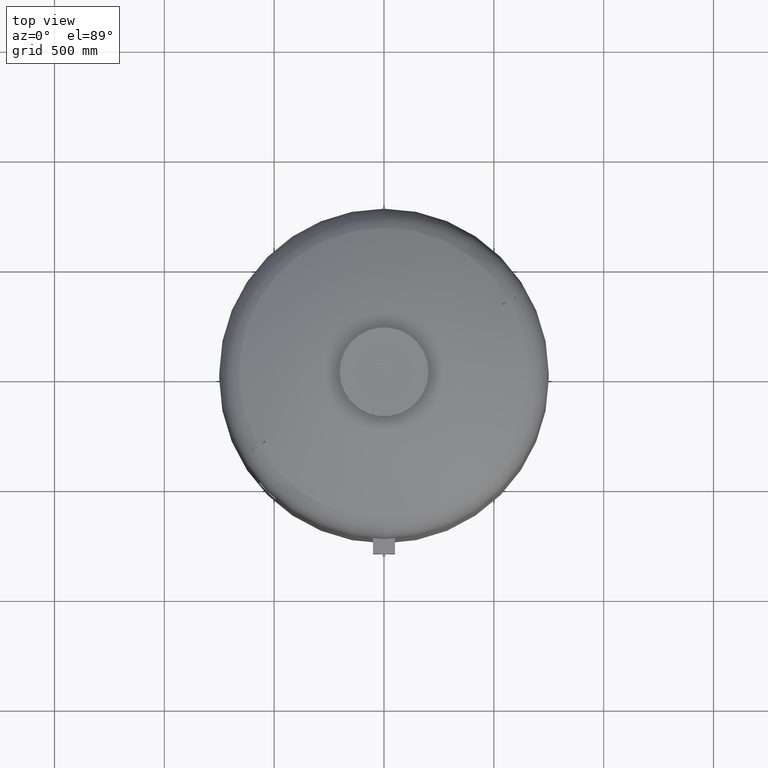
[diagram: clean part render]
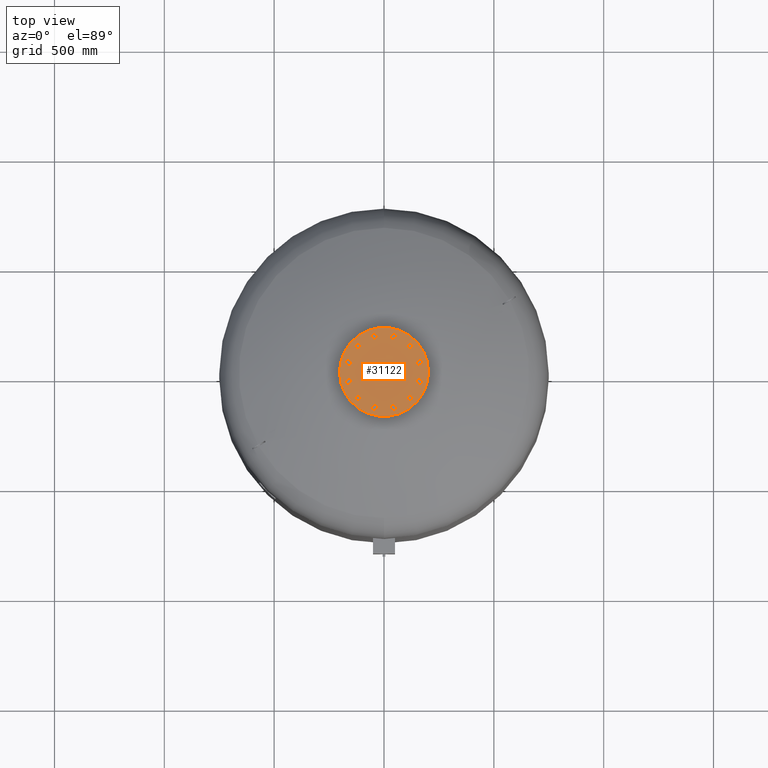
[diagram: same view with one face highlighted and labeled with its STEP entity id]
A machine part, top view. The second image highlights one B-rep face of the part: STEP entity #31122.
In plain terms, the highlighted planar face has unit normal (0, 0, 1).
Its self-contained STEP definition (entity closure, byte-faithful):
#22638=CARTESIAN_POINT('',(202.500000000000000,0.0,2520.0));
#22639=VERTEX_POINT('',#22638);
#22655=CARTESIAN_POINT('',(-202.500000000000000,2.479828E-014,2520.0));
#22656=VERTEX_POINT('',#22655);
#22663=CARTESIAN_POINT('',(0.0,0.0,2520.0));
#22664=DIRECTION('',(0.0,0.0,-1.0));
#22665=DIRECTION('',(1.0,0.0,0.0));
#22666=AXIS2_PLACEMENT_3D('',#22663,#22664,#22665);
#22667=CIRCLE('',#22666,202.500000000000000);
#22668=EDGE_CURVE('',#22656,#22639,#22667,.T.);
#28616=CARTESIAN_POINT('',(-157.729139400922860,-30.104983413641008,2520.0));
#28617=VERTEX_POINT('',#28616);
#28618=CARTESIAN_POINT('',(-148.288440171855850,-40.247625971983268,2520.0));
#28619=VERTEX_POINT('',#28618);
#28620=CARTESIAN_POINT('',(-157.729139400922860,-30.104983413641008,2520.0));
#28621=DIRECTION('',(0.681323780155013,-0.731982176419128,0.0));
#28622=VECTOR('',#28621,13.856406460551090);
#28623=LINE('',#28620,#28622);
#28624=EDGE_CURVE('',#28617,#28619,#28623,.T.);
#28656=CARTESIAN_POINT('',(-171.233275132485970,-33.209547496330110,2520.0));
#28657=VERTEX_POINT('',#28656);
#28658=CARTESIAN_POINT('',(-171.233275132485970,-33.209547496330110,2520.0));
#28659=DIRECTION('',(0.974577049973894,0.224052613607123,0.0));
#28660=VECTOR('',#28659,13.856406460551119);
#28661=LINE('',#28658,#28660);
#28662=EDGE_CURVE('',#28657,#28617,#28661,.T.);
#28687=CARTESIAN_POINT('',(-175.296711634982050,-46.456754137361422,2520.0));
#28688=VERTEX_POINT('',#28687);
#28689=CARTESIAN_POINT('',(-175.296711634982050,-46.456754137361422,2520.0));
#28690=DIRECTION('',(0.293253269818881,0.956034790026249,0.0));
#28691=VECTOR('',#28690,13.856406460551076);
#28692=LINE('',#28689,#28691);
#28693=EDGE_CURVE('',#28688,#28657,#28692,.T.);
#28718=CARTESIAN_POINT('',(-152.351876674351930,-53.494832613014587,2520.0));
#28719=VERTEX_POINT('',#28718);
#28720=CARTESIAN_POINT('',(-148.288440171855850,-40.247625971983268,2520.0));
#28721=DIRECTION('',(-0.293253269818881,-0.956034790026249,0.0));
#28722=VECTOR('',#28721,13.856406460551083);
#28723=LINE('',#28720,#28722);
#28724=EDGE_CURVE('',#28619,#28719,#28723,.T.);
#28749=CARTESIAN_POINT('',(-165.856012405915040,-56.599396695703689,2520.0));
#28750=VERTEX_POINT('',#28749);
#28751=CARTESIAN_POINT('',(-152.351876674351930,-53.494832613014587,2520.0));
#28752=DIRECTION('',(-0.974577049973894,-0.224052613607123,0.0));
#28753=VECTOR('',#28752,13.856406460551119);
#28754=LINE('',#28751,#28753);
#28755=EDGE_CURVE('',#28719,#28750,#28754,.T.);
#28780=CARTESIAN_POINT('',(-165.856012405915040,-56.599396695703689,2520.0));
#28781=DIRECTION('',(-0.681323780155012,0.731982176419129,0.0));
#28782=VECTOR('',#28781,13.856406460551096);
#28783=LINE('',#28780,#28782);
#28784=EDGE_CURVE('',#28750,#28688,#28783,.T.);
#28816=CARTESIAN_POINT('',(-121.544949931435720,-104.936250117183760,2520.0));
#28817=VERTEX_POINT('',#28816);
#28818=CARTESIAN_POINT('',(-108.297743290404380,-108.999686619679820,2520.0));
#28819=VERTEX_POINT('',#28818);
#28820=CARTESIAN_POINT('',(-121.544949931435720,-104.936250117183760,2520.0));
#28821=DIRECTION('',(0.956034790026250,-0.293253269818880,0.0));
#28822=VECTOR('',#28821,13.856406460551101);
#28823=LINE('',#28820,#28822);
#28824=EDGE_CURVE('',#28817,#28819,#28823,.T.);
#28856=CARTESIAN_POINT('',(-131.687592489777960,-114.376949346250780,2520.0));
#28857=VERTEX_POINT('',#28856);
#28858=CARTESIAN_POINT('',(-131.687592489777960,-114.376949346250780,2520.0));
#28859=DIRECTION('',(0.731982176419127,0.681323780155014,0.0));
#28860=VECTOR('',#28859,13.856406460551080);
#28861=LINE('',#28858,#28860);
#28862=EDGE_CURVE('',#28857,#28817,#28861,.T.);
#28887=CARTESIAN_POINT('',(-128.583028407088880,-127.881085077813880,2520.0));
#28888=VERTEX_POINT('',#28887);
#28889=CARTESIAN_POINT('',(-128.583028407088880,-127.881085077813880,2520.0));
#28890=DIRECTION('',(-0.224052613607122,0.974577049973894,0.0));
#28891=VECTOR('',#28890,13.856406460551099);
#28892=LINE('',#28889,#28891);
#28893=EDGE_CURVE('',#28888,#28857,#28892,.T.);
#28918=CARTESIAN_POINT('',(-105.193179207715300,-122.503822351242900,2520.0));
#28919=VERTEX_POINT('',#28918);
#28920=CARTESIAN_POINT('',(-108.297743290404380,-108.999686619679820,2520.0));
#28921=DIRECTION('',(0.224052613607122,-0.974577049973894,0.0));
#28922=VECTOR('',#28921,13.856406460551087);
#28923=LINE('',#28920,#28922);
#28924=EDGE_CURVE('',#28819,#28919,#28923,.T.);
#28949=CARTESIAN_POINT('',(-115.335821766057560,-131.944521580309950,2520.0));
#28950=VERTEX_POINT('',#28949);
#28951=CARTESIAN_POINT('',(-105.193179207715300,-122.503822351242900,2520.0));
#28952=DIRECTION('',(-0.731982176419127,-0.681323780155014,0.0));
#28953=VECTOR('',#28952,13.856406460551121);
#28954=LINE('',#28951,#28953);
#28955=EDGE_CURVE('',#28919,#28950,#28954,.T.);
#28980=CARTESIAN_POINT('',(-115.335821766057560,-131.944521580309950,2520.0));
#28981=DIRECTION('',(-0.956034790026249,0.293253269818881,0.0));
#28982=VECTOR('',#28981,13.856406460551076);
#28983=LINE('',#28980,#28982);
#28984=EDGE_CURVE('',#28950,#28888,#28983,.T.);
#29016=CARTESIAN_POINT('',(-52.792889283739193,-151.649933345076730,2520.0));
#29017=VERTEX_POINT('',#29016);
#29018=CARTESIAN_POINT('',(-39.288753552176118,-148.545369262387680,2520.0));
#29019=VERTEX_POINT('',#29018);
#29020=CARTESIAN_POINT('',(-52.792889283739193,-151.649933345076730,2520.0));
#29021=DIRECTION('',(0.974577049973894,0.224052613607120,0.0));
#29022=VECTOR('',#29021,13.856406460551073);
#29023=LINE('',#29020,#29022);
#29024=EDGE_CURVE('',#29017,#29019,#29023,.T.);
#29056=CARTESIAN_POINT('',(-56.856325786235274,-164.897139986108100,2520.0));
#29057=VERTEX_POINT('',#29056);
#29058=CARTESIAN_POINT('',(-56.856325786235274,-164.897139986108100,2520.0));
#29059=DIRECTION('',(0.293253269818881,0.956034790026249,0.0));
#29060=VECTOR('',#29059,13.856406460551133);
#29061=LINE('',#29058,#29060);
#29062=EDGE_CURVE('',#29057,#29017,#29061,.T.);
#29087=CARTESIAN_POINT('',(-47.415626557168267,-175.039782544450330,2520.0));
#29088=VERTEX_POINT('',#29087);
#29089=CARTESIAN_POINT('',(-47.415626557168267,-175.039782544450330,2520.0));
#29090=DIRECTION('',(-0.681323780155014,0.731982176419128,0.0));
#29091=VECTOR('',#29090,13.856406460551069);
#29092=LINE('',#29089,#29091);
#29093=EDGE_CURVE('',#29088,#29057,#29092,.T.);
#29118=CARTESIAN_POINT('',(-29.848054323109103,-158.688011820729910,2520.0));
#29119=VERTEX_POINT('',#29118);
#29120=CARTESIAN_POINT('',(-39.288753552176118,-148.545369262387680,2520.0));
#29121=DIRECTION('',(0.681323780155014,-0.731982176419127,0.0));
#29122=VECTOR('',#29121,13.856406460551076);
#29123=LINE('',#29120,#29122);
#29124=EDGE_CURVE('',#29019,#29119,#29123,.T.);
#29149=CARTESIAN_POINT('',(-33.911490825605156,-171.935218461761250,2520.0));
#29150=VERTEX_POINT('',#29149);
#29151=CARTESIAN_POINT('',(-29.848054323109103,-158.688011820729910,2520.0));
#29152=DIRECTION('',(-0.293253269818879,-0.956034790026250,0.0));
#29153=VECTOR('',#29152,13.856406460551097);
#29154=LINE('',#29151,#29153);
#29155=EDGE_CURVE('',#29119,#29150,#29154,.T.);
#29180=CARTESIAN_POINT('',(-33.911490825605156,-171.935218461761250,2520.0));
#29181=DIRECTION('',(-0.974577049973894,-0.224052613607121,0.0));
#29182=VECTOR('',#29181,13.856406460551113);
#29183=LINE('',#29180,#29182);
#29184=EDGE_CURVE('',#29150,#29088,#29183,.T.);
#29216=CARTESIAN_POINT('',(30.104983413641008,-157.729139400922860,2520.0));
#29217=VERTEX_POINT('',#29216);
#29218=CARTESIAN_POINT('',(40.247625971983268,-148.288440171855850,2520.0));
#29219=VERTEX_POINT('',#29218);
#29220=CARTESIAN_POINT('',(30.104983413641008,-157.729139400922860,2520.0));
#29221=DIRECTION('',(0.731982176419128,0.681323780155013,0.0));
#29222=VECTOR('',#29221,13.856406460551090);
#29223=LINE('',#29220,#29222);
#29224=EDGE_CURVE('',#29217,#29219,#29223,.T.);
#29256=CARTESIAN_POINT('',(33.209547496330110,-171.233275132485970,2520.0));
#29257=VERTEX_POINT('',#29256);
#29258=CARTESIAN_POINT('',(33.209547496330110,-171.233275132485970,2520.0));
#29259=DIRECTION('',(-0.224052613607123,0.974577049973894,0.0));
#29260=VECTOR('',#29259,13.856406460551119);
#29261=LINE('',#29258,#29260);
#29262=EDGE_CURVE('',#29257,#29217,#29261,.T.);
#29287=CARTESIAN_POINT('',(46.456754137361422,-175.296711634982050,2520.0));
#29288=VERTEX_POINT('',#29287);
#29289=CARTESIAN_POINT('',(46.456754137361422,-175.296711634982050,2520.0));
#29290=DIRECTION('',(-0.956034790026249,0.293253269818881,0.0));
#29291=VECTOR('',#29290,13.856406460551076);
#29292=LINE('',#29289,#29291);
#29293=EDGE_CURVE('',#29288,#29257,#29292,.T.);
#29318=CARTESIAN_POINT('',(53.494832613014587,-152.351876674351930,2520.0));
#29319=VERTEX_POINT('',#29318);
#29320=CARTESIAN_POINT('',(40.247625971983268,-148.288440171855850,2520.0));
#29321=DIRECTION('',(0.956034790026249,-0.293253269818881,0.0));
#29322=VECTOR('',#29321,13.856406460551083);
#29323=LINE('',#29320,#29322);
#29324=EDGE_CURVE('',#29219,#29319,#29323,.T.);
#29349=CARTESIAN_POINT('',(56.599396695703689,-165.856012405915040,2520.0));
#29350=VERTEX_POINT('',#29349);
#29351=CARTESIAN_POINT('',(53.494832613014587,-152.351876674351930,2520.0));
#29352=DIRECTION('',(0.224052613607123,-0.974577049973894,0.0));
#29353=VECTOR('',#29352,13.856406460551119);
#29354=LINE('',#29351,#29353);
#29355=EDGE_CURVE('',#29319,#29350,#29354,.T.);
#29380=CARTESIAN_POINT('',(56.599396695703689,-165.856012405915040,2520.0));
#29381=DIRECTION('',(-0.731982176419129,-0.681323780155012,0.0));
#29382=VECTOR('',#29381,13.856406460551096);
#29383=LINE('',#29380,#29382);
#29384=EDGE_CURVE('',#29350,#29288,#29383,.T.);
#29416=CARTESIAN_POINT('',(104.936250117183700,-121.544949931435750,2520.0));
#29417=VERTEX_POINT('',#29416);
#29418=CARTESIAN_POINT('',(108.999686619679760,-108.297743290404440,2520.0));
#29419=VERTEX_POINT('',#29418);
#29420=CARTESIAN_POINT('',(104.936250117183700,-121.544949931435750,2520.0));
#29421=DIRECTION('',(0.293253269818880,0.956034790026249,0.0));
#29422=VECTOR('',#29421,13.856406460551073);
#29423=LINE('',#29420,#29422);
#29424=EDGE_CURVE('',#29417,#29419,#29423,.T.);
#29456=CARTESIAN_POINT('',(114.376949346250730,-131.687592489778010,2520.0));
#29457=VERTEX_POINT('',#29456);
#29458=CARTESIAN_POINT('',(114.376949346250730,-131.687592489778010,2520.0));
#29459=DIRECTION('',(-0.681323780155013,0.731982176419128,0.0));
#29460=VECTOR('',#29459,13.856406460551101);
#29461=LINE('',#29458,#29460);
#29462=EDGE_CURVE('',#29457,#29417,#29461,.T.);
#29487=CARTESIAN_POINT('',(127.881085077813810,-128.583028407088930,2520.0));
#29488=VERTEX_POINT('',#29487);
#29489=CARTESIAN_POINT('',(127.881085077813810,-128.583028407088930,2520.0));
#29490=DIRECTION('',(-0.974577049973894,-0.224052613607122,0.0));
#29491=VECTOR('',#29490,13.856406460551087);
#29492=LINE('',#29489,#29491);
#29493=EDGE_CURVE('',#29488,#29457,#29492,.T.);
#29518=CARTESIAN_POINT('',(122.503822351242850,-105.193179207715360,2520.0));
#29519=VERTEX_POINT('',#29518);
#29520=CARTESIAN_POINT('',(108.999686619679760,-108.297743290404440,2520.0));
#29521=DIRECTION('',(0.974577049973894,0.224052613607122,0.0));
#29522=VECTOR('',#29521,13.856406460551087);
#29523=LINE('',#29520,#29522);
#29524=EDGE_CURVE('',#29419,#29519,#29523,.T.);
#29549=CARTESIAN_POINT('',(131.944521580309900,-115.335821766057620,2520.0));
#29550=VERTEX_POINT('',#29549);
#29551=CARTESIAN_POINT('',(122.503822351242850,-105.193179207715360,2520.0));
#29552=DIRECTION('',(0.681323780155014,-0.731982176419127,0.0));
#29553=VECTOR('',#29552,13.856406460551121);
#29554=LINE('',#29551,#29553);
#29555=EDGE_CURVE('',#29519,#29550,#29554,.T.);
#29580=CARTESIAN_POINT('',(131.944521580309900,-115.335821766057620,2520.0));
#29581=DIRECTION('',(-0.293253269818882,-0.956034790026249,0.0));
#29582=VECTOR('',#29581,13.856406460551081);
#29583=LINE('',#29580,#29582);
#29584=EDGE_CURVE('',#29550,#29488,#29583,.T.);
#29616=CARTESIAN_POINT('',(151.649933345076730,-52.792889283739214,2520.0));
#29617=VERTEX_POINT('',#29616);
#29618=CARTESIAN_POINT('',(148.545369262387650,-39.288753552176125,2520.0));
#29619=VERTEX_POINT('',#29618);
#29620=CARTESIAN_POINT('',(151.649933345076730,-52.792889283739214,2520.0));
#29621=DIRECTION('',(-0.224052613607122,0.974577049973894,0.0));
#29622=VECTOR('',#29621,13.856406460551092);
#29623=LINE('',#29620,#29622);
#29624=EDGE_CURVE('',#29617,#29619,#29623,.T.);
#29656=CARTESIAN_POINT('',(164.897139986108100,-56.856325786235296,2520.0));
#29657=VERTEX_POINT('',#29656);
#29658=CARTESIAN_POINT('',(164.897139986108100,-56.856325786235296,2520.0));
#29659=DIRECTION('',(-0.956034790026249,0.293253269818881,0.0));
#29660=VECTOR('',#29659,13.856406460551133);
#29661=LINE('',#29658,#29660);
#29662=EDGE_CURVE('',#29657,#29617,#29661,.T.);
#29687=CARTESIAN_POINT('',(175.039782544450300,-47.415626557168260,2520.0));
#29688=VERTEX_POINT('',#29687);
#29689=CARTESIAN_POINT('',(175.039782544450300,-47.415626557168260,2520.0));
#29690=DIRECTION('',(-0.731982176419126,-0.681323780155016,0.0));
#29691=VECTOR('',#29690,13.856406460551069);
#29692=LINE('',#29689,#29691);
#29693=EDGE_CURVE('',#29688,#29657,#29692,.T.);
#29718=CARTESIAN_POINT('',(158.688011820729910,-29.848054323109110,2520.0));
#29719=VERTEX_POINT('',#29718);
#29720=CARTESIAN_POINT('',(148.545369262387650,-39.288753552176125,2520.0));
#29721=DIRECTION('',(0.731982176419128,0.681323780155013,0.0));
#29722=VECTOR('',#29721,13.856406460551096);
#29723=LINE('',#29720,#29722);
#29724=EDGE_CURVE('',#29619,#29719,#29723,.T.);
#29749=CARTESIAN_POINT('',(171.935218461761250,-33.911490825605171,2520.0));
#29750=VERTEX_POINT('',#29749);
#29751=CARTESIAN_POINT('',(158.688011820729910,-29.848054323109110,2520.0));
#29752=DIRECTION('',(0.956034790026250,-0.293253269818880,0.0));
#29753=VECTOR('',#29752,13.856406460551101);
#29754=LINE('',#29751,#29753);
#29755=EDGE_CURVE('',#29719,#29750,#29754,.T.);
#29780=CARTESIAN_POINT('',(171.935218461761250,-33.911490825605171,2520.0));
#29781=DIRECTION('',(0.224052613607120,-0.974577049973894,0.0));
#29782=VECTOR('',#29781,13.856406460551087);
#29783=LINE('',#29780,#29782);
#29784=EDGE_CURVE('',#29750,#29688,#29783,.T.);
#29816=CARTESIAN_POINT('',(157.729139400922860,30.104983413640987,2520.0));
#29817=VERTEX_POINT('',#29816);
#29818=CARTESIAN_POINT('',(148.288440171855850,40.247625971983247,2520.0));
#29819=VERTEX_POINT('',#29818);
#29820=CARTESIAN_POINT('',(157.729139400922860,30.104983413640987,2520.0));
#29821=DIRECTION('',(-0.681323780155013,0.731982176419128,0.0));
#29822=VECTOR('',#29821,13.856406460551090);
#29823=LINE('',#29820,#29822);
#29824=EDGE_CURVE('',#29817,#29819,#29823,.T.);
#29856=CARTESIAN_POINT('',(171.233275132486000,33.209547496330096,2520.0));
#29857=VERTEX_POINT('',#29856);
#29858=CARTESIAN_POINT('',(171.233275132486000,33.209547496330096,2520.0));
#29859=DIRECTION('',(-0.974577049973894,-0.224052613607123,0.0));
#29860=VECTOR('',#29859,13.856406460551147);
#29861=LINE('',#29858,#29860);
#29862=EDGE_CURVE('',#29857,#29817,#29861,.T.);
#29887=CARTESIAN_POINT('',(175.296711634982050,46.456754137361401,2520.0));
#29888=VERTEX_POINT('',#29887);
#29889=CARTESIAN_POINT('',(175.296711634982050,46.456754137361401,2520.0));
#29890=DIRECTION('',(-0.293253269818880,-0.956034790026250,0.0));
#29891=VECTOR('',#29890,13.856406460551062);
#29892=LINE('',#29889,#29891);
#29893=EDGE_CURVE('',#29888,#29857,#29892,.T.);
#29918=CARTESIAN_POINT('',(152.351876674351960,53.494832613014580,2520.0));
#29919=VERTEX_POINT('',#29918);
#29920=CARTESIAN_POINT('',(148.288440171855850,40.247625971983247,2520.0));
#29921=DIRECTION('',(0.293253269818883,0.956034790026249,0.0));
#29922=VECTOR('',#29921,13.856406460551106);
#29923=LINE('',#29920,#29922);
#29924=EDGE_CURVE('',#29819,#29919,#29923,.T.);
#29949=CARTESIAN_POINT('',(165.856012405915070,56.599396695703646,2520.0));
#29950=VERTEX_POINT('',#29949);
#29951=CARTESIAN_POINT('',(152.351876674351960,53.494832613014580,2520.0));
#29952=DIRECTION('',(0.974577049973894,0.224052613607121,0.0));
#29953=VECTOR('',#29952,13.856406460551110);
#29954=LINE('',#29951,#29953);
#29955=EDGE_CURVE('',#29919,#29950,#29954,.T.);
#29980=CARTESIAN_POINT('',(165.856012405915070,56.599396695703646,2520.0));
#29981=DIRECTION('',(0.681323780155012,-0.731982176419129,0.0));
#29982=VECTOR('',#29981,13.856406460551062);
#29983=LINE('',#29980,#29982);
#29984=EDGE_CURVE('',#29950,#29888,#29983,.T.);
#30016=CARTESIAN_POINT('',(121.544949931435750,104.936250117183680,2520.0));
#30017=VERTEX_POINT('',#30016);
#30018=CARTESIAN_POINT('',(108.297743290404440,108.999686619679760,2520.0));
#30019=VERTEX_POINT('',#30018);
#30020=CARTESIAN_POINT('',(121.544949931435750,104.936250117183680,2520.0));
#30021=DIRECTION('',(-0.956034790026249,0.293253269818882,0.0));
#30022=VECTOR('',#30021,13.856406460551081);
#30023=LINE('',#30020,#30022);
#30024=EDGE_CURVE('',#30017,#30019,#30023,.T.);
#30056=CARTESIAN_POINT('',(131.687592489778010,114.376949346250730,2520.0));
#30057=VERTEX_POINT('',#30056);
#30058=CARTESIAN_POINT('',(131.687592489778010,114.376949346250730,2520.0));
#30059=DIRECTION('',(-0.731982176419127,-0.681323780155014,0.0));
#30060=VECTOR('',#30059,13.856406460551121);
#30061=LINE('',#30058,#30060);
#30062=EDGE_CURVE('',#30057,#30017,#30061,.T.);
#30087=CARTESIAN_POINT('',(128.583028407088930,127.881085077813790,2520.0));
#30088=VERTEX_POINT('',#30087);
#30089=CARTESIAN_POINT('',(128.583028407088930,127.881085077813790,2520.0));
#30090=DIRECTION('',(0.224052613607122,-0.974577049973894,0.0));
#30091=VECTOR('',#30090,13.856406460551071);
#30092=LINE('',#30089,#30091);
#30093=EDGE_CURVE('',#30088,#30057,#30092,.T.);
#30118=CARTESIAN_POINT('',(105.193179207715360,122.503822351242850,2520.0));
#30119=VERTEX_POINT('',#30118);
#30120=CARTESIAN_POINT('',(108.297743290404440,108.999686619679760,2520.0));
#30121=DIRECTION('',(-0.224052613607122,0.974577049973894,0.0));
#30122=VECTOR('',#30121,13.856406460551087);
#30123=LINE('',#30120,#30122);
#30124=EDGE_CURVE('',#30019,#30119,#30123,.T.);
#30149=CARTESIAN_POINT('',(115.335821766057620,131.944521580309900,2520.0));
#30150=VERTEX_POINT('',#30149);
#30151=CARTESIAN_POINT('',(105.193179207715360,122.503822351242850,2520.0));
#30152=DIRECTION('',(0.731982176419127,0.681323780155014,0.0));
#30153=VECTOR('',#30152,13.856406460551121);
#30154=LINE('',#30151,#30153);
#30155=EDGE_CURVE('',#30119,#30150,#30154,.T.);
#30180=CARTESIAN_POINT('',(115.335821766057620,131.944521580309900,2520.0));
#30181=DIRECTION('',(0.956034790026249,-0.293253269818883,0.0));
#30182=VECTOR('',#30181,13.856406460551085);
#30183=LINE('',#30180,#30182);
#30184=EDGE_CURVE('',#30150,#30088,#30183,.T.);
#30216=CARTESIAN_POINT('',(52.792889283739228,151.649933345076730,2520.0));
#30217=VERTEX_POINT('',#30216);
#30218=CARTESIAN_POINT('',(39.288753552176132,148.545369262387680,2520.0));
#30219=VERTEX_POINT('',#30218);
#30220=CARTESIAN_POINT('',(52.792889283739228,151.649933345076730,2520.0));
#30221=DIRECTION('',(-0.974577049973894,-0.224052613607120,0.0));
#30222=VECTOR('',#30221,13.856406460551094);
#30223=LINE('',#30220,#30222);
#30224=EDGE_CURVE('',#30217,#30219,#30223,.T.);
#30256=CARTESIAN_POINT('',(56.856325786235296,164.897139986108100,2520.0));
#30257=VERTEX_POINT('',#30256);
#30258=CARTESIAN_POINT('',(56.856325786235296,164.897139986108100,2520.0));
#30259=DIRECTION('',(-0.293253269818880,-0.956034790026250,0.0));
#30260=VECTOR('',#30259,13.856406460551129);
#30261=LINE('',#30258,#30260);
#30262=EDGE_CURVE('',#30257,#30217,#30261,.T.);
#30287=CARTESIAN_POINT('',(47.415626557168281,175.039782544450300,2520.0));
#30288=VERTEX_POINT('',#30287);
#30289=CARTESIAN_POINT('',(47.415626557168281,175.039782544450300,2520.0));
#30290=DIRECTION('',(0.681323780155015,-0.731982176419126,0.0));
#30291=VECTOR('',#30290,13.856406460551055);
#30292=LINE('',#30289,#30291);
#30293=EDGE_CURVE('',#30288,#30257,#30292,.T.);
#30318=CARTESIAN_POINT('',(29.848054323109121,158.688011820729910,2520.0));
#30319=VERTEX_POINT('',#30318);
#30320=CARTESIAN_POINT('',(39.288753552176132,148.545369262387680,2520.0));
#30321=DIRECTION('',(-0.681323780155014,0.731982176419127,0.0));
#30322=VECTOR('',#30321,13.856406460551073);
#30323=LINE('',#30320,#30322);
#30324=EDGE_CURVE('',#30219,#30319,#30323,.T.);
#30349=CARTESIAN_POINT('',(33.911490825605199,171.935218461761280,2520.0));
#30350=VERTEX_POINT('',#30349);
#30351=CARTESIAN_POINT('',(29.848054323109121,158.688011820729910,2520.0));
#30352=DIRECTION('',(0.293253269818880,0.956034790026249,0.0));
#30353=VECTOR('',#30352,13.856406460551133);
#30354=LINE('',#30351,#30353);
#30355=EDGE_CURVE('',#30319,#30350,#30354,.T.);
#30380=CARTESIAN_POINT('',(33.911490825605199,171.935218461761280,2520.0));
#30381=DIRECTION('',(0.974577049973895,0.224052613607118,0.0));
#30382=VECTOR('',#30381,13.856406460551074);
#30383=LINE('',#30380,#30382);
#30384=EDGE_CURVE('',#30350,#30288,#30383,.T.);
#30416=CARTESIAN_POINT('',(-30.104983413640952,157.729139400922890,2520.0));
#30417=VERTEX_POINT('',#30416);
#30418=CARTESIAN_POINT('',(-40.247625971983211,148.288440171855880,2520.0));
#30419=VERTEX_POINT('',#30418);
#30420=CARTESIAN_POINT('',(-30.104983413640952,157.729139400922890,2520.0));
#30421=DIRECTION('',(-0.731982176419128,-0.681323780155013,0.0));
#30422=VECTOR('',#30421,13.856406460551090);
#30423=LINE('',#30420,#30422);
#30424=EDGE_CURVE('',#30417,#30419,#30423,.T.);
#30456=CARTESIAN_POINT('',(-33.209547496330039,171.233275132486000,2520.0));
#30457=VERTEX_POINT('',#30456);
#30458=CARTESIAN_POINT('',(-33.209547496330039,171.233275132486000,2520.0));
#30459=DIRECTION('',(0.224052613607122,-0.974577049973894,0.0));
#30460=VECTOR('',#30459,13.856406460551115);
#30461=LINE('',#30458,#30460);
#30462=EDGE_CURVE('',#30457,#30417,#30461,.T.);
#30487=CARTESIAN_POINT('',(-46.456754137361351,175.296711634982070,2520.0));
#30488=VERTEX_POINT('',#30487);
#30489=CARTESIAN_POINT('',(-46.456754137361351,175.296711634982070,2520.0));
#30490=DIRECTION('',(0.956034790026249,-0.293253269818881,0.0));
#30491=VECTOR('',#30490,13.856406460551076);
#30492=LINE('',#30489,#30491);
#30493=EDGE_CURVE('',#30488,#30457,#30492,.T.);
#30518=CARTESIAN_POINT('',(-53.494832613014523,152.351876674351960,2520.0));
#30519=VERTEX_POINT('',#30518);
#30520=CARTESIAN_POINT('',(-40.247625971983211,148.288440171855880,2520.0));
#30521=DIRECTION('',(-0.956034790026249,0.293253269818881,0.0));
#30522=VECTOR('',#30521,13.856406460551076);
#30523=LINE('',#30520,#30522);
#30524=EDGE_CURVE('',#30419,#30519,#30523,.T.);
#30549=CARTESIAN_POINT('',(-56.599396695703625,165.856012405915070,2520.0));
#30550=VERTEX_POINT('',#30549);
#30551=CARTESIAN_POINT('',(-53.494832613014523,152.351876674351960,2520.0));
#30552=DIRECTION('',(-0.224052613607123,0.974577049973894,0.0));
#30553=VECTOR('',#30552,13.856406460551119);
#30554=LINE('',#30551,#30553);
#30555=EDGE_CURVE('',#30519,#30550,#30554,.T.);
#30580=CARTESIAN_POINT('',(-56.599396695703625,165.856012405915070,2520.0));
#30581=DIRECTION('',(0.731982176419129,0.681323780155012,0.0));
#30582=VECTOR('',#30581,13.856406460551101);
#30583=LINE('',#30580,#30582);
#30584=EDGE_CURVE('',#30550,#30488,#30583,.T.);
#30616=CARTESIAN_POINT('',(-104.936250117183660,121.544949931435800,2520.0));
#30617=VERTEX_POINT('',#30616);
#30618=CARTESIAN_POINT('',(-108.999686619679750,108.297743290404470,2520.0));
#30619=VERTEX_POINT('',#30618);
#30620=CARTESIAN_POINT('',(-104.936250117183660,121.544949931435800,2520.0));
#30621=DIRECTION('',(-0.293253269818882,-0.956034790026249,0.0));
#30622=VECTOR('',#30621,13.856406460551094);
#30623=LINE('',#30620,#30622);
#30624=EDGE_CURVE('',#30617,#30619,#30623,.T.);
#30656=CARTESIAN_POINT('',(-114.376949346250710,131.687592489778040,2520.0));
#30657=VERTEX_POINT('',#30656);
#30658=CARTESIAN_POINT('',(-114.376949346250710,131.687592489778040,2520.0));
#30659=DIRECTION('',(0.681323780155015,-0.731982176419126,0.0));
#30660=VECTOR('',#30659,13.856406460551110);
#30661=LINE('',#30658,#30660);
#30662=EDGE_CURVE('',#30657,#30617,#30661,.T.);
#30687=CARTESIAN_POINT('',(-127.881085077813760,128.583028407088960,2520.0));
#30688=VERTEX_POINT('',#30687);
#30689=CARTESIAN_POINT('',(-127.881085077813760,128.583028407088960,2520.0));
#30690=DIRECTION('',(0.974577049973894,0.224052613607122,0.0));
#30691=VECTOR('',#30690,13.856406460551058);
#30692=LINE('',#30689,#30691);
#30693=EDGE_CURVE('',#30688,#30657,#30692,.T.);
#30718=CARTESIAN_POINT('',(-122.503822351242830,105.193179207715390,2520.0));
#30719=VERTEX_POINT('',#30718);
#30720=CARTESIAN_POINT('',(-108.999686619679750,108.297743290404470,2520.0));
#30721=DIRECTION('',(-0.974577049973894,-0.224052613607122,0.0));
#30722=VECTOR('',#30721,13.856406460551087);
#30723=LINE('',#30720,#30722);
#30724=EDGE_CURVE('',#30619,#30719,#30723,.T.);
#30749=CARTESIAN_POINT('',(-131.944521580309870,115.335821766057650,2520.0));
#30750=VERTEX_POINT('',#30749);
#30751=CARTESIAN_POINT('',(-122.503822351242830,105.193179207715390,2520.0));
#30752=DIRECTION('',(-0.681323780155014,0.731982176419127,0.0));
#30753=VECTOR('',#30752,13.856406460551110);
#30754=LINE('',#30751,#30753);
#30755=EDGE_CURVE('',#30719,#30750,#30754,.T.);
#30780=CARTESIAN_POINT('',(-131.944521580309870,115.335821766057650,2520.0));
#30781=DIRECTION('',(0.293253269818883,0.956034790026249,0.0));
#30782=VECTOR('',#30781,13.856406460551085);
#30783=LINE('',#30780,#30782);
#30784=EDGE_CURVE('',#30750,#30688,#30783,.T.);
#30816=CARTESIAN_POINT('',(-151.649933345076730,52.792889283739228,2520.0));
#30817=VERTEX_POINT('',#30816);
#30818=CARTESIAN_POINT('',(-148.545369262387650,39.288753552176139,2520.0));
#30819=VERTEX_POINT('',#30818);
#30820=CARTESIAN_POINT('',(-151.649933345076730,52.792889283739228,2520.0));
#30821=DIRECTION('',(0.224052613607122,-0.974577049973894,0.0));
#30822=VECTOR('',#30821,13.856406460551092);
#30823=LINE('',#30820,#30822);
#30824=EDGE_CURVE('',#30817,#30819,#30823,.T.);
#30856=CARTESIAN_POINT('',(-164.897139986108070,56.856325786235303,2520.0));
#30857=VERTEX_POINT('',#30856);
#30858=CARTESIAN_POINT('',(-164.897139986108070,56.856325786235303,2520.0));
#30859=DIRECTION('',(0.956034790026249,-0.293253269818881,0.0));
#30860=VECTOR('',#30859,13.856406460551105);
#30861=LINE('',#30858,#30860);
#30862=EDGE_CURVE('',#30857,#30817,#30861,.T.);
#30887=CARTESIAN_POINT('',(-175.039782544450300,47.415626557168295,2520.0));
#30888=VERTEX_POINT('',#30887);
#30889=CARTESIAN_POINT('',(-175.039782544450300,47.415626557168295,2520.0));
#30890=DIRECTION('',(0.731982176419128,0.681323780155014,0.0));
#30891=VECTOR('',#30890,13.856406460551069);
#30892=LINE('',#30889,#30891);
#30893=EDGE_CURVE('',#30888,#30857,#30892,.T.);
#30918=CARTESIAN_POINT('',(-158.688011820729910,29.848054323109132,2520.0));
#30919=VERTEX_POINT('',#30918);
#30920=CARTESIAN_POINT('',(-148.545369262387650,39.288753552176139,2520.0));
#30921=DIRECTION('',(-0.731982176419128,-0.681323780155013,0.0));
#30922=VECTOR('',#30921,13.856406460551090);
#30923=LINE('',#30920,#30922);
#30924=EDGE_CURVE('',#30819,#30919,#30923,.T.);
#30949=CARTESIAN_POINT('',(-171.935218461761250,33.911490825605206,2520.0));
#30950=VERTEX_POINT('',#30949);
#30951=CARTESIAN_POINT('',(-158.688011820729910,29.848054323109132,2520.0));
#30952=DIRECTION('',(-0.956034790026249,0.293253269818881,0.0));
#30953=VECTOR('',#30952,13.856406460551105);
#30954=LINE('',#30951,#30953);
#30955=EDGE_CURVE('',#30919,#30950,#30954,.T.);
#30980=CARTESIAN_POINT('',(-171.935218461761250,33.911490825605206,2520.0));
#30981=DIRECTION('',(-0.224052613607120,0.974577049973894,0.0));
#30982=VECTOR('',#30981,13.856406460551087);
#30983=LINE('',#30980,#30982);
#30984=EDGE_CURVE('',#30950,#30888,#30983,.T.);
#31011=CARTESIAN_POINT('',(101.250000000000000,0.0,2520.0));
#31012=DIRECTION('',(0.0,0.0,1.0));
#31013=DIRECTION('',(0.0,-1.0,0.0));
#31014=AXIS2_PLACEMENT_3D('',#31011,#31012,#31013);
#31015=PLANE('',#31014);
#31016=CARTESIAN_POINT('',(0.0,0.0,2520.0));
#31017=DIRECTION('',(0.0,0.0,-1.0));
#31018=DIRECTION('',(1.0,0.0,0.0));
#31019=AXIS2_PLACEMENT_3D('',#31016,#31017,#31018);
#31020=CIRCLE('',#31019,202.500000000000000);
#31021=EDGE_CURVE('',#22639,#22656,#31020,.T.);
#31022=ORIENTED_EDGE('',*,*,#31021,.F.);
#31023=ORIENTED_EDGE('',*,*,#22668,.F.);
#31024=EDGE_LOOP('',(#31022,#31023));
#31025=FACE_OUTER_BOUND('',#31024,.T.);
#31026=ORIENTED_EDGE('',*,*,#28624,.T.);
#31027=ORIENTED_EDGE('',*,*,#28724,.T.);
#31028=ORIENTED_EDGE('',*,*,#28755,.T.);
#31029=ORIENTED_EDGE('',*,*,#28784,.T.);
#31030=ORIENTED_EDGE('',*,*,#28693,.T.);
#31031=ORIENTED_EDGE('',*,*,#28662,.T.);
#31032=EDGE_LOOP('',(#31026,#31027,#31028,#31029,#31030,#31031));
#31033=FACE_BOUND('',#31032,.T.);
#31034=ORIENTED_EDGE('',*,*,#28824,.T.);
#31035=ORIENTED_EDGE('',*,*,#28924,.T.);
#31036=ORIENTED_EDGE('',*,*,#28955,.T.);
#31037=ORIENTED_EDGE('',*,*,#28984,.T.);
#31038=ORIENTED_EDGE('',*,*,#28893,.T.);
#31039=ORIENTED_EDGE('',*,*,#28862,.T.);
#31040=EDGE_LOOP('',(#31034,#31035,#31036,#31037,#31038,#31039));
#31041=FACE_BOUND('',#31040,.T.);
#31042=ORIENTED_EDGE('',*,*,#29024,.T.);
#31043=ORIENTED_EDGE('',*,*,#29124,.T.);
#31044=ORIENTED_EDGE('',*,*,#29155,.T.);
#31045=ORIENTED_EDGE('',*,*,#29184,.T.);
#31046=ORIENTED_EDGE('',*,*,#29093,.T.);
#31047=ORIENTED_EDGE('',*,*,#29062,.T.);
#31048=EDGE_LOOP('',(#31042,#31043,#31044,#31045,#31046,#31047));
#31049=FACE_BOUND('',#31048,.T.);
#31050=ORIENTED_EDGE('',*,*,#29224,.T.);
#31051=ORIENTED_EDGE('',*,*,#29324,.T.);
#31052=ORIENTED_EDGE('',*,*,#29355,.T.);
#31053=ORIENTED_EDGE('',*,*,#29384,.T.);
#31054=ORIENTED_EDGE('',*,*,#29293,.T.);
#31055=ORIENTED_EDGE('',*,*,#29262,.T.);
#31056=EDGE_LOOP('',(#31050,#31051,#31052,#31053,#31054,#31055));
#31057=FACE_BOUND('',#31056,.T.);
#31058=ORIENTED_EDGE('',*,*,#29424,.T.);
#31059=ORIENTED_EDGE('',*,*,#29524,.T.);
#31060=ORIENTED_EDGE('',*,*,#29555,.T.);
#31061=ORIENTED_EDGE('',*,*,#29584,.T.);
#31062=ORIENTED_EDGE('',*,*,#29493,.T.);
#31063=ORIENTED_EDGE('',*,*,#29462,.T.);
#31064=EDGE_LOOP('',(#31058,#31059,#31060,#31061,#31062,#31063));
#31065=FACE_BOUND('',#31064,.T.);
#31066=ORIENTED_EDGE('',*,*,#29624,.T.);
#31067=ORIENTED_EDGE('',*,*,#29724,.T.);
#31068=ORIENTED_EDGE('',*,*,#29755,.T.);
#31069=ORIENTED_EDGE('',*,*,#29784,.T.);
#31070=ORIENTED_EDGE('',*,*,#29693,.T.);
#31071=ORIENTED_EDGE('',*,*,#29662,.T.);
#31072=EDGE_LOOP('',(#31066,#31067,#31068,#31069,#31070,#31071));
#31073=FACE_BOUND('',#31072,.T.);
#31074=ORIENTED_EDGE('',*,*,#29824,.T.);
#31075=ORIENTED_EDGE('',*,*,#29924,.T.);
#31076=ORIENTED_EDGE('',*,*,#29955,.T.);
#31077=ORIENTED_EDGE('',*,*,#29984,.T.);
#31078=ORIENTED_EDGE('',*,*,#29893,.T.);
#31079=ORIENTED_EDGE('',*,*,#29862,.T.);
#31080=EDGE_LOOP('',(#31074,#31075,#31076,#31077,#31078,#31079));
#31081=FACE_BOUND('',#31080,.T.);
#31082=ORIENTED_EDGE('',*,*,#30024,.T.);
#31083=ORIENTED_EDGE('',*,*,#30124,.T.);
#31084=ORIENTED_EDGE('',*,*,#30155,.T.);
#31085=ORIENTED_EDGE('',*,*,#30184,.T.);
#31086=ORIENTED_EDGE('',*,*,#30093,.T.);
#31087=ORIENTED_EDGE('',*,*,#30062,.T.);
#31088=EDGE_LOOP('',(#31082,#31083,#31084,#31085,#31086,#31087));
#31089=FACE_BOUND('',#31088,.T.);
#31090=ORIENTED_EDGE('',*,*,#30224,.T.);
#31091=ORIENTED_EDGE('',*,*,#30324,.T.);
#31092=ORIENTED_EDGE('',*,*,#30355,.T.);
#31093=ORIENTED_EDGE('',*,*,#30384,.T.);
#31094=ORIENTED_EDGE('',*,*,#30293,.T.);
#31095=ORIENTED_EDGE('',*,*,#30262,.T.);
#31096=EDGE_LOOP('',(#31090,#31091,#31092,#31093,#31094,#31095));
#31097=FACE_BOUND('',#31096,.T.);
#31098=ORIENTED_EDGE('',*,*,#30424,.T.);
#31099=ORIENTED_EDGE('',*,*,#30524,.T.);
#31100=ORIENTED_EDGE('',*,*,#30555,.T.);
#31101=ORIENTED_EDGE('',*,*,#30584,.T.);
#31102=ORIENTED_EDGE('',*,*,#30493,.T.);
#31103=ORIENTED_EDGE('',*,*,#30462,.T.);
#31104=EDGE_LOOP('',(#31098,#31099,#31100,#31101,#31102,#31103));
#31105=FACE_BOUND('',#31104,.T.);
#31106=ORIENTED_EDGE('',*,*,#30624,.T.);
#31107=ORIENTED_EDGE('',*,*,#30724,.T.);
#31108=ORIENTED_EDGE('',*,*,#30755,.T.);
#31109=ORIENTED_EDGE('',*,*,#30784,.T.);
#31110=ORIENTED_EDGE('',*,*,#30693,.T.);
#31111=ORIENTED_EDGE('',*,*,#30662,.T.);
#31112=EDGE_LOOP('',(#31106,#31107,#31108,#31109,#31110,#31111));
#31113=FACE_BOUND('',#31112,.T.);
#31114=ORIENTED_EDGE('',*,*,#30824,.T.);
#31115=ORIENTED_EDGE('',*,*,#30924,.T.);
#31116=ORIENTED_EDGE('',*,*,#30955,.T.);
#31117=ORIENTED_EDGE('',*,*,#30984,.T.);
#31118=ORIENTED_EDGE('',*,*,#30893,.T.);
#31119=ORIENTED_EDGE('',*,*,#30862,.T.);
#31120=EDGE_LOOP('',(#31114,#31115,#31116,#31117,#31118,#31119));
#31121=FACE_BOUND('',#31120,.T.);
#31122=ADVANCED_FACE('',(#31025,#31033,#31041,#31049,#31057,#31065,#31073,#31081,#31089,#31097,#31105,#31113,#31121),#31015,.T.);